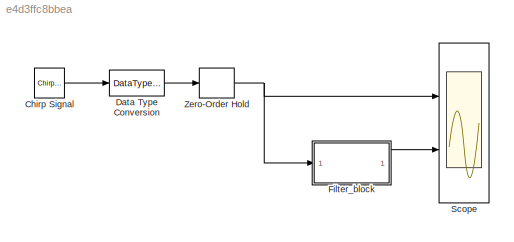
MODEL slx_e4d3ffc8bbea
KIND model
CONFIG AbsTol = auto
CONFIG FixedStep = auto
CONFIG MaxStep = auto
CONFIG MinStep = auto
CONFIG RelTol = 1e-3
CONFIG SampleTimeConstraint = Unconstrained
CONFIG Solver = FixedStepDiscrete
CONFIG SolverMode = SingleTasking
CONFIG SolverName = FixedStepDiscrete
CONFIG StartTime = 0.0
CONFIG StopTime = 10000/1e6
BLOCK [Reference] Chirp Signal  REF=simulink/Sources/Chirp Signal
  Ports = [0, 1]
  SourceBlock = simulink/Sources/Chirp Signal
  SourceType = chirp
BLOCK [DataTypeConversion] Data Type Conversion
  OutDataTypeStr = fixdt(1,16,14)
  RndMeth = Nearest
  SaturateOnIntegerOverflow = off
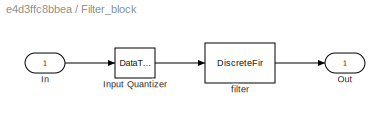
BLOCK [SubSystem] Filter_block
  Ports = [1, 1]
  RequestExecContextInheritance = off
  Tag = BlockMethodSubSystem
  Variant = off
BLOCK [Inport] Filter_block/In
  IconDisplay = Port number
BLOCK [DataTypeConversion] Filter_block/Input Quantizer
  OutDataTypeStr = fixdt(1,16,14)
  RndMeth = Round
BLOCK [Outport] Filter_block/Out
  IconDisplay = Port number
BLOCK [DiscreteFir] Filter_block/filter
  AccumDataTypeStr = fixdt(true,33,31)
  CoefDataTypeStr = fixdt(true,16,16)
  Coefficients = [-0.0015246255854119901 -0.0056040694699944459 -0.0058450039381682788 -6.2680724829390806e-05 0.0059777568571996731 0.0024746345997378864 -0.0067957421209925116 -0.0064654391449295058 0.0062328738643254028 0.011598387637803855 -0.0031016131441193155 -0.01699091246940064 -0.003469463473475945 0.021317820921314172 0.014205217299065596 -0.022739848971926518 -0.029832087938286563 0.018638954412635484 ...<+655ch>
  InputPortMap = u0
  InputProcessing = Columns as channels (frame based)
  OutDataTypeStr = fixdt(true,16,14)
  OutputPortMap = o0
  Ports = [1, 1]
  ProductDataTypeStr = fixdt(true,31,31)
  StateDataTypeStr = fixdt(true,33,31)
BLOCK [Scope] Scope
  NumInputPorts = 2
  Ports = [2]
  ScopeSpecificationString = C++SS(StrPVP('Location','[1237, 339, 1911, 1025]'),StrPVP('Open','off'),StrPVP('ZoomMode','xonly'),MxPVP('AxesTitles',24,'struct(''axes1'',''%<SignalLabel>'',''axes2'',''%<SignalLabel>'')'),MxPVP('ScopeGraphics',28,'struct(''FigureColor'',''[0.5 0.5 0.5]'',''AxesColor'',''[0 0 0]'',''AxesTickColor'',''[1 1 1]'',''LineColors'',''[1 1 0;1 0 1;0 1 1;1 0 0;0 1 0;0 0 1]'',''LineStyles'',''-|-|-|-|-|-''...<+319ch>
BLOCK [ZeroOrderHold] Zero-Order Hold
  SampleTime = 1/1e6
LINE Chirp Signal:1 -> Data Type Conversion:1
LINE Data Type Conversion:1 -> Zero-Order Hold:1
LINE Filter_block/In:1 -> Filter_block/Input Quantizer:1
LINE Filter_block/Input Quantizer:1 -> Filter_block/filter:1
LINE Filter_block/filter:1 -> Filter_block/Out:1
LINE Filter_block:1 -> Scope:2
NET Zero-Order Hold:1 -> Filter_block:1, Scope:1
note: NET lines group one-source signal fan-out (src -> all destinations, sorted); 1:1 wires keep LINE
